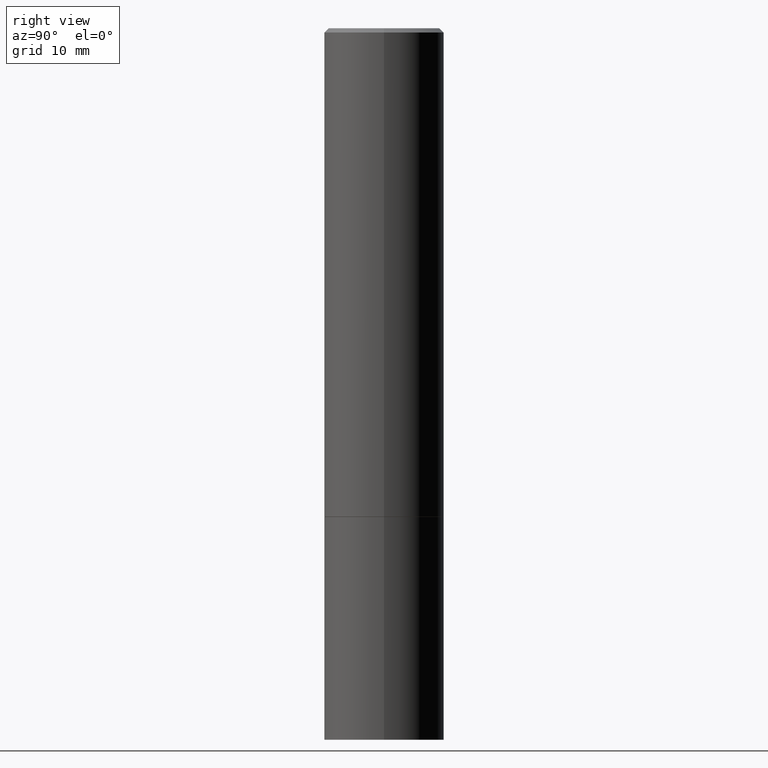
[diagram: clean part render]
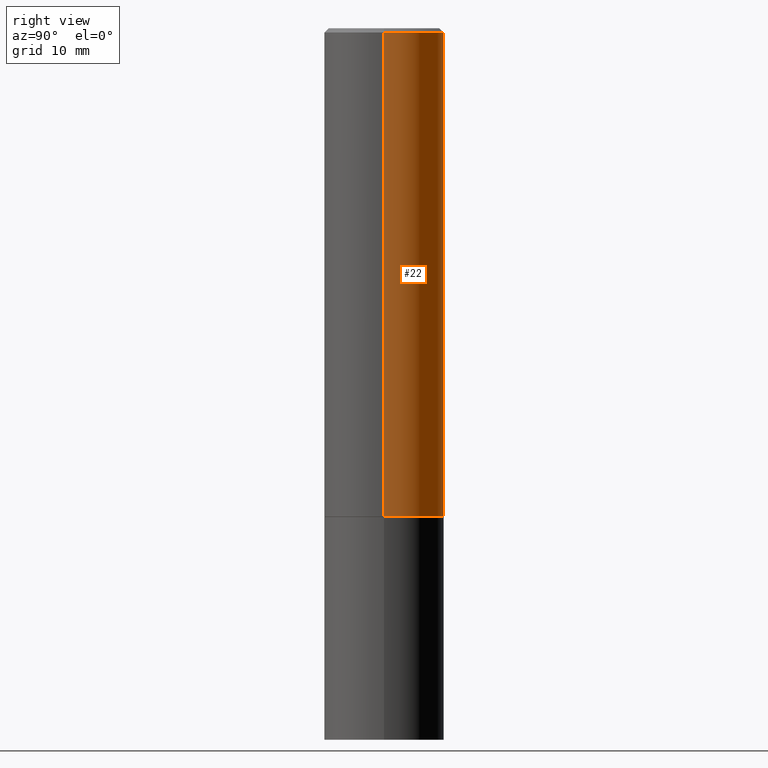
[diagram: same view with one face highlighted and labeled with its STEP entity id]
A machine part, right view. The second image highlights one B-rep face of the part: STEP entity #22.
In plain terms, the highlighted cylindrical surface (partial cylindrical patch) has radius 7.0002 mm, axis along (-0, 0, 1).
Its self-contained STEP definition (entity closure, byte-faithful):
#9 = CARTESIAN_POINT ( 'NONE',  ( 4.890937612370288923E-31, -6.982962677686312563E-17, -0.02000000000000006287 ) ) ;
#21 = AXIS2_PLACEMENT_3D ( 'NONE', #238, #236, #44 ) ;
#22 = ADVANCED_FACE ( 'NONE', ( #240 ), #310, .T. ) ;
#24 = EDGE_CURVE ( 'NONE', #316, #243, #338, .T. ) ;
#28 = ORIENTED_EDGE ( 'NONE', *, *, #130, .F. ) ;
#29 = CARTESIAN_POINT ( 'NONE',  ( 0.2755999999999997341, -1.960582874962695433E-15, -0.02000000000000006287 ) ) ;
#44 = DIRECTION ( 'NONE',  ( 1.000000000000000000, -6.982962677686265922E-15, 4.876176775795935793E-29 ) ) ;
#62 = AXIS2_PLACEMENT_3D ( 'NONE', #72, #178, #147 ) ;
#70 = CARTESIAN_POINT ( 'NONE',  ( -0.2755999999999999006, 1.958255779754835406E-15, -1.355658510874251446E-29 ) ) ;
#72 = CARTESIAN_POINT ( 'NONE',  ( 5.485431079153880270E-29, -7.831741791159060910E-15, -2.243100000000000094 ) ) ;
#75 = CIRCLE ( 'NONE', #355, 0.2755999999999997341 ) ;
#114 = CARTESIAN_POINT ( 'NONE',  ( 0.2756000000000000116, -9.756246305129397442E-15, -2.243100000000000094 ) ) ;
#117 = EDGE_LOOP ( 'NONE', ( #263, #139, #28, #218 ) ) ;
#128 = VECTOR ( 'NONE', #183, 39.37007874015748143 ) ;
#130 = EDGE_CURVE ( 'NONE', #211, #348, #75, .T. ) ;
#139 = ORIENTED_EDGE ( 'NONE', *, *, #176, .T. ) ;
#146 = LINE ( 'NONE', #70, #308 ) ;
#147 = DIRECTION ( 'NONE',  ( 1.000000000000000000, -6.982962677686269866E-15, 0.000000000000000000 ) ) ;
#176 = EDGE_CURVE ( 'NONE', #243, #348, #146, .T. ) ;
#178 = DIRECTION ( 'NONE',  ( -2.445468806185136597E-29, 3.491481338843145583E-15, 1.000000000000000000 ) ) ;
#183 = DIRECTION ( 'NONE',  ( -2.445468806185136877E-29, 3.491481338843145188E-15, 1.000000000000000000 ) ) ;
#191 = CARTESIAN_POINT ( 'NONE',  ( -0.2756000000000000116, -1.992529929213123148E-15, -2.243100000000000094 ) ) ;
#200 = DIRECTION ( 'NONE',  ( -2.445468806185136877E-29, 3.491481338843145188E-15, 1.000000000000000000 ) ) ;
#211 = VERTEX_POINT ( 'NONE', #29 ) ;
#213 = EDGE_CURVE ( 'NONE', #316, #211, #276, .T. ) ;
#218 = ORIENTED_EDGE ( 'NONE', *, *, #213, .F. ) ;
#236 = DIRECTION ( 'NONE',  ( -2.445468806185136597E-29, 3.491481338843145583E-15, 1.000000000000000000 ) ) ;
#238 = CARTESIAN_POINT ( 'NONE',  ( 0.000000000000000000, 0.000000000000000000, 0.000000000000000000 ) ) ;
#240 = FACE_OUTER_BOUND ( 'NONE', #117, .T. ) ;
#243 = VERTEX_POINT ( 'NONE', #191 ) ;
#253 = CARTESIAN_POINT ( 'NONE',  ( 0.2755999999999999006, -1.924504513970334165E-15, 1.343874319409359427E-29 ) ) ;
#257 = CARTESIAN_POINT ( 'NONE',  ( -0.2755999999999997341, 1.854674887193470472E-15, -0.02000000000000006287 ) ) ;
#259 = DIRECTION ( 'NONE',  ( -2.445468806185136597E-29, 3.491481338843145583E-15, 1.000000000000000000 ) ) ;
#263 = ORIENTED_EDGE ( 'NONE', *, *, #24, .T. ) ;
#276 = LINE ( 'NONE', #253, #128 ) ;
#308 = VECTOR ( 'NONE', #200, 39.37007874015748143 ) ;
#310 = CYLINDRICAL_SURFACE ( 'NONE', #21, 0.2755999999999999006 ) ;
#316 = VERTEX_POINT ( 'NONE', #114 ) ;
#335 = DIRECTION ( 'NONE',  ( 1.000000000000000000, -6.982962677686267499E-15, 0.000000000000000000 ) ) ;
#338 = CIRCLE ( 'NONE', #62, 0.2756000000000000116 ) ;
#348 = VERTEX_POINT ( 'NONE', #257 ) ;
#355 = AXIS2_PLACEMENT_3D ( 'NONE', #9, #259, #335 ) ;